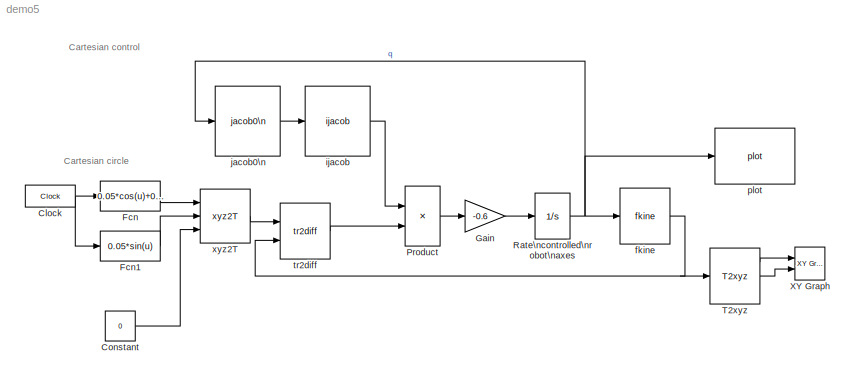
MODEL demo5
KIND model
CONFIG PreLoadFcn = puma560
BLOCK [Clock] Clock
  Decimation = 10
  DisplayTime = on
BLOCK [Constant] Constant
  Value = 0
BLOCK [Fcn] Fcn
  Expr = 0.05*cos(u)+0.5
BLOCK [Fcn] Fcn1
  Expr = 0.05*sin(u)
BLOCK [Gain] Gain
  Gain = -0.6
BLOCK [Product] Product
  Multiplication = Matrix(*)
  Ports = [2, 1]
BLOCK [Integrator] Rate\ncontrolled\nrobot\naxes
  InitialCondition = [0.2763    0.9125    2.9359         0    2.4348   -0.2763]
  Ports = [1, 1]
BLOCK [Reference] T2xyz  REF=roblocks/T2xyz  (lib defined in mdl_2a292b13c81b, mdl_69400f8cfe22, +12 more)
  FunctionWithSeparateData = off
  Ports = [1, 3]
  RTWMemSecDataConstants = Inherit from model
  RTWMemSecDataInternal = Inherit from model
  RTWMemSecDataParameters = Inherit from model
  RTWMemSecFuncExecute = Inherit from model
  RTWMemSecFuncInitTerm = Inherit from model
  ShowPortLabels = FromPortIcon
  SourceBlock = roblocks/T2xyz
  SystemSampleTime = -1
BLOCK [Reference] XY Graph  REF=simulink/Sinks/XY Graph
  FunctionWithSeparateData = off
  Ports = [2]
  RTWMemSecDataConstants = Inherit from model
  RTWMemSecDataInternal = Inherit from model
  RTWMemSecDataParameters = Inherit from model
  RTWMemSecFuncExecute = Inherit from model
  RTWMemSecFuncInitTerm = Inherit from model
  ShowPortLabels = FromPortIcon
  SourceBlock = simulink/Sinks/XY Graph
  SourceType = XY scope.
  SystemSampleTime = -1
  st = -1
  xmax = 0.6
  xmin = 0.4
  ymax = 0.1
  ymin = -0.1
BLOCK [Reference] fkine  REF=roblocks/fkine  (lib defined in mdl_2a292b13c81b, mdl_69400f8cfe22, +12 more)
  FunctionWithSeparateData = off
  Ports = [1, 1]
  RTWMemSecDataConstants = Inherit from model
  RTWMemSecDataInternal = Inherit from model
  RTWMemSecDataParameters = Inherit from model
  RTWMemSecFuncExecute = Inherit from model
  RTWMemSecFuncInitTerm = Inherit from model
  ShowPortLabels = FromPortIcon
  SourceBlock = roblocks/fkine
  SystemSampleTime = -1
  robot = p560
BLOCK [Reference] ijacob  REF=roblocks/ijacob  (lib defined in mdl_2a292b13c81b, mdl_69400f8cfe22, +12 more)
  FunctionWithSeparateData = off
  Ports = [1, 1]
  RTWMemSecDataConstants = Inherit from model
  RTWMemSecDataInternal = Inherit from model
  RTWMemSecDataParameters = Inherit from model
  RTWMemSecFuncExecute = Inherit from model
  RTWMemSecFuncInitTerm = Inherit from model
  ShowPortLabels = FromPortIcon
  SourceBlock = roblocks/ijacob
  SystemSampleTime = -1
BLOCK [Reference] jacob0\n  REF=roblocks/jacob0\n  (lib defined in mdl_2a292b13c81b, mdl_69400f8cfe22, +12 more)
  FunctionWithSeparateData = off
  Ports = [1, 1]
  RTWMemSecDataConstants = Inherit from model
  RTWMemSecDataInternal = Inherit from model
  RTWMemSecDataParameters = Inherit from model
  RTWMemSecFuncExecute = Inherit from model
  RTWMemSecFuncInitTerm = Inherit from model
  ShowPortLabels = FromPortIcon
  SourceBlock = roblocks/jacob0\n
  SystemSampleTime = -1
  robot = p560
BLOCK [Reference] plot  REF=roblocks/plot  (lib defined in mdl_2a292b13c81b, mdl_69400f8cfe22, +12 more)
  FunctionWithSeparateData = off
  Ports = [1]
  RTWMemSecDataConstants = Inherit from model
  RTWMemSecDataInternal = Inherit from model
  RTWMemSecDataParameters = Inherit from model
  RTWMemSecFuncExecute = Inherit from model
  RTWMemSecFuncInitTerm = Inherit from model
  ShowPortLabels = FromPortIcon
  SourceBlock = roblocks/plot
  SystemSampleTime = -1
  robot = p560
BLOCK [Reference] tr2diff  REF=roblocks/tr2diff  (lib defined in mdl_2a292b13c81b, mdl_69400f8cfe22, +12 more)
  FunctionWithSeparateData = off
  Ports = [2, 1]
  RTWMemSecDataConstants = Inherit from model
  RTWMemSecDataInternal = Inherit from model
  RTWMemSecDataParameters = Inherit from model
  RTWMemSecFuncExecute = Inherit from model
  RTWMemSecFuncInitTerm = Inherit from model
  ShowPortLabels = FromPortIcon
  SourceBlock = roblocks/tr2diff
  SystemSampleTime = -1
  robot = robot
BLOCK [Reference] xyz2T  REF=roblocks/xyz2T  (lib defined in mdl_2a292b13c81b, mdl_69400f8cfe22, +12 more)
  FunctionWithSeparateData = off
  Ports = [3, 1]
  RTWMemSecDataConstants = Inherit from model
  RTWMemSecDataInternal = Inherit from model
  RTWMemSecDataParameters = Inherit from model
  RTWMemSecFuncExecute = Inherit from model
  RTWMemSecFuncInitTerm = Inherit from model
  ShowPortLabels = FromPortIcon
  SourceBlock = roblocks/xyz2T
  SystemSampleTime = -1
ANNOTATION (root): Cartesian circle
ANNOTATION (root): Cartesian control
NET Clock:1 -> Fcn1:1, Fcn:1
LINE Constant:1 -> xyz2T:3
LINE Fcn1:1 -> xyz2T:2
LINE Fcn:1 -> xyz2T:1
LINE Gain:1 -> Rate\ncontrolled\nrobot\naxes:1
LINE Product:1 -> Gain:1
NET Rate\ncontrolled\nrobot\naxes:1 -> fkine:1, jacob0\n:1, plot:1
LINE T2xyz:1 -> XY Graph:1
LINE T2xyz:2 -> XY Graph:2
NET fkine:1 -> T2xyz:1, tr2diff:2
LINE ijacob:1 -> Product:1
LINE jacob0\n:1 -> ijacob:1
LINE tr2diff:1 -> Product:2
LINE xyz2T:1 -> tr2diff:1
note: NET lines group one-source signal fan-out (src -> all destinations, sorted); 1:1 wires keep LINE
